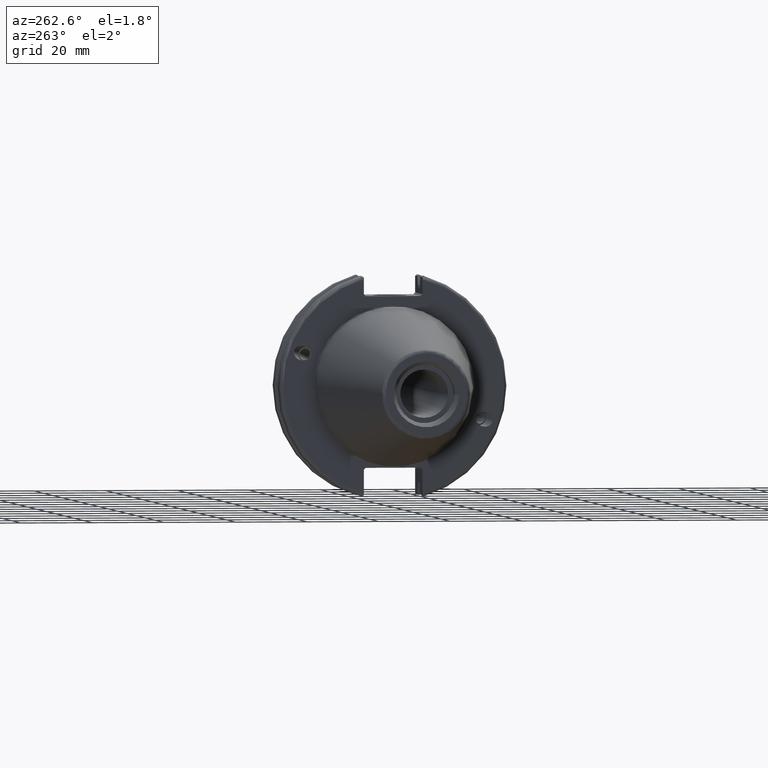
[diagram: clean part render]
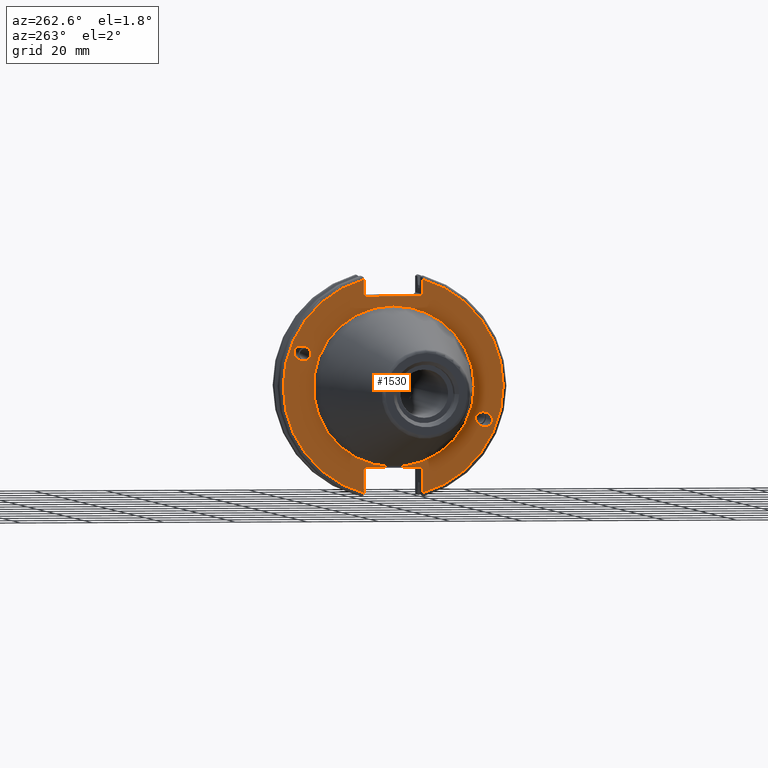
[diagram: same view with one face highlighted and labeled with its STEP entity id]
A machine part, auxiliary view. The second image highlights one B-rep face of the part: STEP entity #1530.
In plain terms, the highlighted planar face has unit normal (-1, 0, 0).
Its self-contained STEP definition (entity closure, byte-faithful):
#39=ELLIPSE('',#1657,2.44154917752291,2.);
#48=ELLIPSE('',#1700,2.44154917752291,2.);
#141=LINE('',#2791,#233);
#142=LINE('',#2793,#234);
#143=LINE('',#2795,#235);
#144=LINE('',#2797,#236);
#145=LINE('',#2799,#237);
#146=LINE('',#2803,#238);
#147=LINE('',#2805,#239);
#148=LINE('',#2807,#240);
#149=LINE('',#2809,#241);
#150=LINE('',#2810,#242);
#233=VECTOR('',#2043,10.);
#234=VECTOR('',#2044,10.);
#235=VECTOR('',#2045,10.);
#236=VECTOR('',#2046,10.);
#237=VECTOR('',#2047,10.);
#238=VECTOR('',#2050,10.);
#239=VECTOR('',#2051,10.);
#240=VECTOR('',#2052,10.);
#241=VECTOR('',#2053,10.);
#242=VECTOR('',#2054,10.);
#317=FACE_BOUND('',#494,.T.);
#318=FACE_BOUND('',#495,.T.);
#319=FACE_BOUND('',#496,.T.);
#333=PLANE('',#1706);
#398=FACE_OUTER_BOUND('',#493,.T.);
#493=EDGE_LOOP('',(#1241,#1242,#1243,#1244,#1245,#1246,#1247,#1248,#1249,
#1250,#1251,#1252));
#494=EDGE_LOOP('',(#1253));
#495=EDGE_LOOP('',(#1254));
#496=EDGE_LOOP('',(#1255));
#592=CIRCLE('',#1704,22.3);
#594=CIRCLE('',#1707,30.75);
#595=CIRCLE('',#1708,30.75);
#678=VERTEX_POINT('',#2592);
#718=VERTEX_POINT('',#2775);
#721=VERTEX_POINT('',#2782);
#722=VERTEX_POINT('',#2787);
#723=VERTEX_POINT('',#2788);
#724=VERTEX_POINT('',#2790);
#725=VERTEX_POINT('',#2792);
#726=VERTEX_POINT('',#2794);
#727=VERTEX_POINT('',#2796);
#728=VERTEX_POINT('',#2798);
#729=VERTEX_POINT('',#2800);
#730=VERTEX_POINT('',#2802);
#731=VERTEX_POINT('',#2804);
#732=VERTEX_POINT('',#2806);
#733=VERTEX_POINT('',#2808);
#853=EDGE_CURVE('',#678,#678,#39,.T.);
#909=EDGE_CURVE('',#718,#718,#48,.T.);
#912=EDGE_CURVE('',#721,#721,#592,.T.);
#914=EDGE_CURVE('',#722,#723,#594,.T.);
#915=EDGE_CURVE('',#722,#724,#141,.T.);
#916=EDGE_CURVE('',#725,#724,#142,.T.);
#917=EDGE_CURVE('',#725,#726,#143,.T.);
#918=EDGE_CURVE('',#727,#726,#144,.T.);
#919=EDGE_CURVE('',#727,#728,#145,.T.);
#920=EDGE_CURVE('',#729,#728,#595,.T.);
#921=EDGE_CURVE('',#729,#730,#146,.T.);
#922=EDGE_CURVE('',#731,#730,#147,.T.);
#923=EDGE_CURVE('',#731,#732,#148,.T.);
#924=EDGE_CURVE('',#733,#732,#149,.T.);
#925=EDGE_CURVE('',#733,#723,#150,.T.);
#1241=ORIENTED_EDGE('',*,*,#914,.F.);
#1242=ORIENTED_EDGE('',*,*,#915,.T.);
#1243=ORIENTED_EDGE('',*,*,#916,.F.);
#1244=ORIENTED_EDGE('',*,*,#917,.T.);
#1245=ORIENTED_EDGE('',*,*,#918,.F.);
#1246=ORIENTED_EDGE('',*,*,#919,.T.);
#1247=ORIENTED_EDGE('',*,*,#920,.F.);
#1248=ORIENTED_EDGE('',*,*,#921,.T.);
#1249=ORIENTED_EDGE('',*,*,#922,.F.);
#1250=ORIENTED_EDGE('',*,*,#923,.T.);
#1251=ORIENTED_EDGE('',*,*,#924,.F.);
#1252=ORIENTED_EDGE('',*,*,#925,.T.);
#1253=ORIENTED_EDGE('',*,*,#853,.T.);
#1254=ORIENTED_EDGE('',*,*,#909,.T.);
#1255=ORIENTED_EDGE('',*,*,#912,.F.);
#1530=ADVANCED_FACE('',(#398,#317,#318,#319),#333,.T.);
#1657=AXIS2_PLACEMENT_3D('',#2594,#1924,#1925);
#1700=AXIS2_PLACEMENT_3D('',#2777,#2027,#2028);
#1704=AXIS2_PLACEMENT_3D('',#2784,#2035,#2036);
#1706=AXIS2_PLACEMENT_3D('',#2786,#2039,#2040);
#1707=AXIS2_PLACEMENT_3D('',#2789,#2041,#2042);
#1708=AXIS2_PLACEMENT_3D('',#2801,#2048,#2049);
#1924=DIRECTION('center_axis',(1.,0.,0.));
#1925=DIRECTION('ref_axis',(0.,-0.939692620785912,-0.34202014332566));
#2027=DIRECTION('center_axis',(1.,0.,0.));
#2028=DIRECTION('ref_axis',(0.,0.939692620785912,0.34202014332566));
#2035=DIRECTION('center_axis',(-1.,0.,0.));
#2036=DIRECTION('ref_axis',(0.,-1.,1.83697019872103E-16));
#2039=DIRECTION('center_axis',(-1.,0.,0.));
#2040=DIRECTION('ref_axis',(0.,0.,1.));
#2041=DIRECTION('center_axis',(1.,0.,0.));
#2042=DIRECTION('ref_axis',(0.,-1.,1.60812264967664E-16));
#2043=DIRECTION('',(0.,0.,-1.));
#2044=DIRECTION('',(0.,-0.70710678118655,0.707106781186545));
#2045=DIRECTION('',(0.,1.,0.));
#2046=DIRECTION('',(0.,-0.707106781186549,-0.707106781186546));
#2047=DIRECTION('',(0.,0.,1.));
#2048=DIRECTION('center_axis',(1.,0.,0.));
#2049=DIRECTION('ref_axis',(0.,1.,1.60812264967664E-16));
#2050=DIRECTION('',(0.,0.,1.));
#2051=DIRECTION('',(0.,0.707106781186549,-0.707106781186546));
#2052=DIRECTION('',(0.,-1.,0.));
#2053=DIRECTION('',(0.,0.707106781186549,0.707106781186546));
#2054=DIRECTION('',(0.,0.,-1.));
#2592=CARTESIAN_POINT('',(3.175,-23.0773950158153,-8.39948487016003));
#2594=CARTESIAN_POINT('Origin',(3.175,-25.3717007612195,-9.23454386979306));
#2775=CARTESIAN_POINT('',(3.175,23.0773950158153,8.39948487016003));
#2777=CARTESIAN_POINT('Origin',(3.175,25.3717007612195,9.23454386979306));
#2782=CARTESIAN_POINT('',(3.175,-2.7309623620986E-15,22.3));
#2784=CARTESIAN_POINT('Origin',(3.175,0.,0.));
#2786=CARTESIAN_POINT('Origin',(3.175,31.75,0.));
#2787=CARTESIAN_POINT('',(3.175,-8.18999999999999,29.6392712461019));
#2788=CARTESIAN_POINT('',(3.175,-8.19,-29.6392712461019));
#2789=CARTESIAN_POINT('Origin',(3.175,0.,0.));
#2790=CARTESIAN_POINT('',(3.175,-8.18999999999999,25.5));
#2791=CARTESIAN_POINT('',(3.175,-8.18999999999999,12.5));
#2792=CARTESIAN_POINT('',(3.175,-7.68999999999999,25.));
#2793=CARTESIAN_POINT('',(3.175,8.29500000000007,9.01500000000004));
#2794=CARTESIAN_POINT('',(3.175,7.69,25.));
#2795=CARTESIAN_POINT('',(3.175,15.875,25.));
#2796=CARTESIAN_POINT('',(3.175,8.19,25.5));
#2797=CARTESIAN_POINT('',(3.175,7.58000000000002,24.89));
#2798=CARTESIAN_POINT('',(3.175,8.19,29.6392712461019));
#2799=CARTESIAN_POINT('',(3.175,8.19,12.5));
#2800=CARTESIAN_POINT('',(3.175,8.18999999999999,-29.6392712461019));
#2801=CARTESIAN_POINT('Origin',(3.175,0.,0.));
#2802=CARTESIAN_POINT('',(3.175,8.18999999999999,-23.1));
#2803=CARTESIAN_POINT('',(3.175,8.18999999999999,-11.3));
#2804=CARTESIAN_POINT('',(3.175,7.69,-22.6));
#2805=CARTESIAN_POINT('',(3.175,8.18000000000002,-23.09));
#2806=CARTESIAN_POINT('',(3.175,-7.69,-22.6));
#2807=CARTESIAN_POINT('',(3.175,15.875,-22.6));
#2808=CARTESIAN_POINT('',(3.175,-8.19,-23.1));
#2809=CARTESIAN_POINT('',(3.175,7.69500000000004,-7.21500000000002));
#2810=CARTESIAN_POINT('',(3.175,-8.19,-11.3));